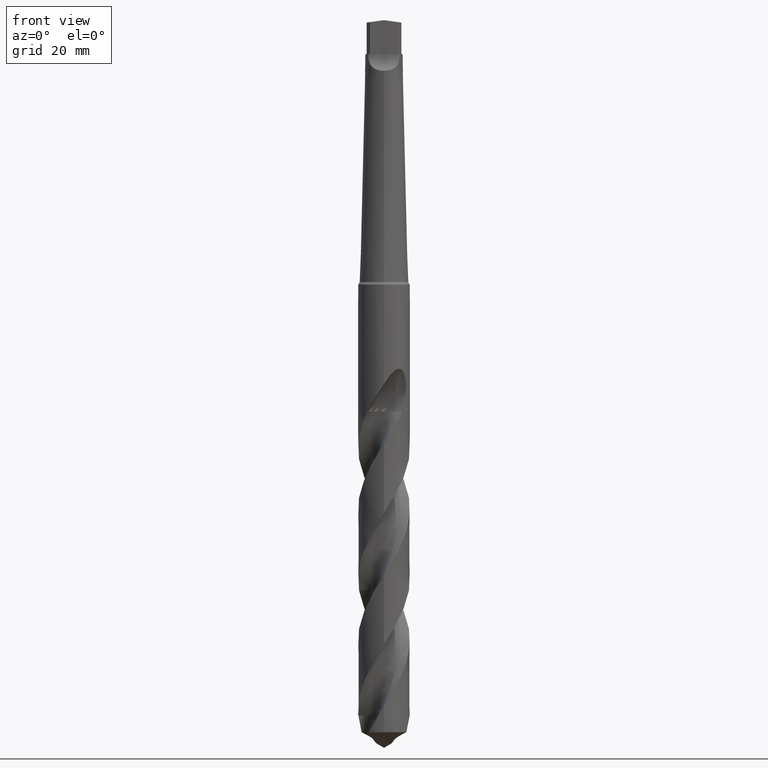
[diagram: clean part render]
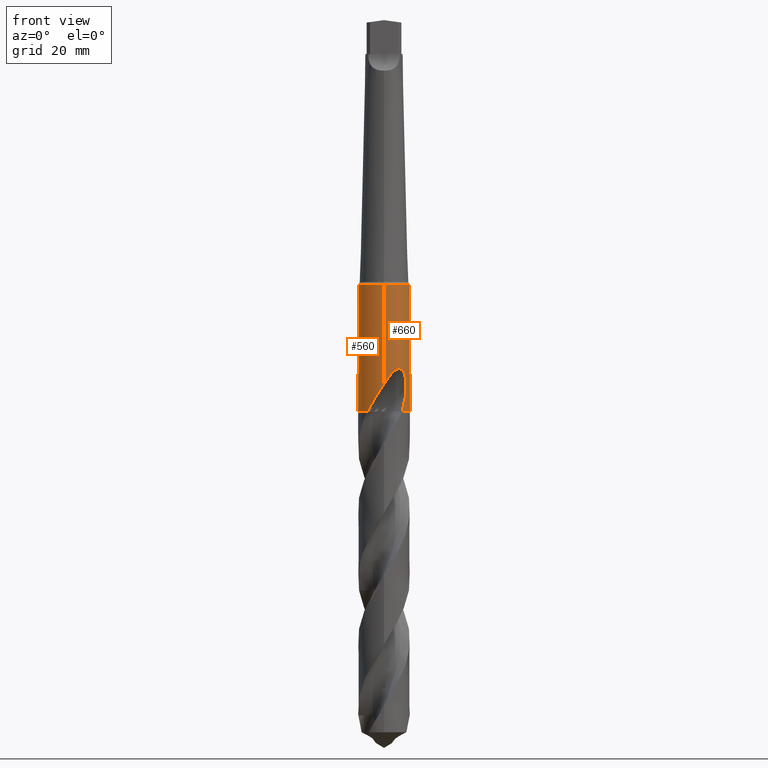
[diagram: same view with one multi-face feature highlighted, each face labeled with its STEP entity id]
A machine part, front view. The highlighted faces form ONE feature: a constant-radius fillet chain: 2 tangent blend faces with common blend radius 6.5 mm. The faces share edges in the B-rep.
Their STEP definitions:
[1] entity #560 (Cylinder):
#322=VERTEX_POINT('',#828);
#334=VERTEX_POINT('',#841);
#338=VERTEX_POINT('',#845);
#374=VERTEX_POINT('',#886);
#402=EDGE_CURVE('',#374,#338,#918,.T.);
#436=EDGE_CURVE('',#512,#692,#956,.T.);
#510=EDGE_CURVE('',#730,#338,#1038,.T.);
#512=VERTEX_POINT('',#1040);
#532=EDGE_CURVE('',#730,#512,#1062,.T.);
#560=ADVANCED_FACE('',(#1091),#1092,.T.);
#578=EDGE_CURVE('',#322,#334,#1112,.T.);
#588=EDGE_CURVE('',#692,#322,#1122,.T.);
#614=EDGE_CURVE('',#334,#374,#1149,.T.);
#692=VERTEX_POINT('',#1234);
#730=VERTEX_POINT('',#1275);
#828=CARTESIAN_POINT('',(0.0,6.5,-4.15817930687617));
#841=CARTESIAN_POINT('',(-1.98725312193417E-012,6.5,-28.9956537273547));
#845=CARTESIAN_POINT('',(-4.51932277904949,4.67180068268804,-35.9));
#886=CARTESIAN_POINT('',(-5.28867406144991,3.77887902316903,-32.3457285140225));
#918=B_SPLINE_CURVE_WITH_KNOTS('',3,(#2948,#2949,#2950,#2951),.UNSPECIFIED.,.F.,.F.,(4,4),(0.0,3.7304180468823),.UNSPECIFIED.);
#956=LINE('',#3150,#3151);
#1038=CIRCLE('',#4203,6.5);
#1040=CARTESIAN_POINT('',(1.98902947877357E-012,-6.5,-28.9956537273547));
#1062=B_SPLINE_CURVE_WITH_KNOTS('',3,(#4264,#4265,#4266,#4267,#4268,#4269,#4270,#4271,#4272,#4273,#4274,#4275,#4276,#4277,#4278,#4279,#4280,#4281,#4282,#4283,#4284,#4285,#4286,#4287,#4288,#4289,#4290,#4291,#4292,#4293),.UNSPECIFIED.,.F.,.F.,(4,2,2,2,2,2,2,2,2,2,2,2,2,2,4),(0.0,3.1809903277017,4.91954110289952,6.49477439006205,8.32513545678558,10.5235474923526,12.4266998005828,13.2899860023741,13.9209877630421,14.5181294194324,15.2756834481871,16.384053317848,17.9597049006676,18.990487032212,20.0737581101875),.UNSPECIFIED.);
#1091=FACE_OUTER_BOUND('',#4381,.T.);
#1092=CYLINDRICAL_SURFACE('',#4382,6.5);
#1112=LINE('',#4484,#4485);
#1122=CIRCLE('',#4501,6.5);
#1149=B_SPLINE_CURVE_WITH_KNOTS('',3,(#4822,#4823,#4824,#4825,#4826,#4827,#4828,#4829,#4830,#4831,#4832,#4833,#4834,#4835,#4836,#4837,#4838,#4839,#4840,#4841,#4842,#4843,#4844,#4845,#4846,#4847,#4848,#4849,#4850,#4851),.UNSPECIFIED.,.F.,.F.,(4,2,2,2,2,2,2,2,2,2,2,2,2,2,4),(0.0,3.18099032770168,4.91954110289942,6.49477439006167,8.32513545678535,10.5235474923523,12.4266998005825,13.2899860023737,13.9209877630416,14.5181294194319,15.2756834481868,16.3840533178464,17.9597049006616,18.9904870322031,20.0737581101756),.UNSPECIFIED.);
#1234=CARTESIAN_POINT('',(7.95994129984545E-016,-6.5,-4.15817930687617));
#1275=CARTESIAN_POINT('',(-4.1395188834721,-5.01142528761808,-35.9));
#2948=CARTESIAN_POINT('',(-5.28867406150253,3.77887902309539,-32.3457285140515));
#2949=CARTESIAN_POINT('',(-5.07941455452145,4.07174506086209,-33.5359655720666));
#2950=CARTESIAN_POINT('',(-4.8272654150656,4.37390865686912,-34.7332515341914));
#2951=CARTESIAN_POINT('',(-4.51932277904949,4.67180068268804,-35.9));
#3150=CARTESIAN_POINT('',(7.95994129984545E-016,-6.5,-20.0290896534381));
#3151=VECTOR('',#7154,1.0);
#4203=AXIS2_PLACEMENT_3D('',#7241,#7242,#7243);
#4264=CARTESIAN_POINT('',(-4.1395188834721,-5.01142528761808,-35.9));
#4265=CARTESIAN_POINT('',(-3.710939633576,-5.36543872614874,-34.997063539087));
#4266=CARTESIAN_POINT('',(-3.21836817802653,-5.68003057835878,-34.1550521977625));
#4267=CARTESIAN_POINT('',(-2.3594727406426,-6.06577304764529,-32.7481972438205));
#4268=CARTESIAN_POINT('',(-2.05022107642257,-6.17679948091023,-32.252903665723));
#4269=CARTESIAN_POINT('',(-1.45146878546427,-6.34274946418171,-31.2940091759847));
#4270=CARTESIAN_POINT('',(-1.16463030583795,-6.40137932375165,-30.834859972935));
#4271=CARTESIAN_POINT('',(-0.543691685916994,-6.48597261458282,-29.8452006731949));
#4272=CARTESIAN_POINT('',(-0.204391774594324,-6.50580165423902,-29.3069260604782));
#4273=CARTESIAN_POINT('',(0.549067501043602,-6.48981063316087,-28.1555124164234));
#4274=CARTESIAN_POINT('',(0.995820184753461,-6.44070008926963,-27.5003467560075));
#4275=CARTESIAN_POINT('',(1.85687690708438,-6.24260250905468,-26.4208203866682));
#4276=CARTESIAN_POINT('',(2.33287475104792,-6.09187146380076,-25.894524331624));
#4277=CARTESIAN_POINT('',(3.05352277581435,-5.7435516742493,-25.4013938945918));
#4278=CARTESIAN_POINT('',(3.29221786463922,-5.61196846664082,-25.2794492883455));
#4279=CARTESIAN_POINT('',(3.71047511146385,-5.34103532698407,-25.1857924847675));
#4280=CARTESIAN_POINT('',(3.88202985549942,-5.21764771202731,-25.184061499913));
#4281=CARTESIAN_POINT('',(4.20156306436699,-4.96349427750833,-25.2661037370722));
#4282=CARTESIAN_POINT('',(4.34131224901716,-4.8407419994764,-25.3430122148751));
#4283=CARTESIAN_POINT('',(4.62570545946774,-4.5717360011083,-25.583637898744));
#4284=CARTESIAN_POINT('',(4.75727913732759,-4.43232908248177,-25.7612951460687));
#4285=CARTESIAN_POINT('',(5.02678484231783,-4.1279241258795,-26.2477724665436));
#4286=CARTESIAN_POINT('',(5.15560071068611,-3.96215569977288,-26.6085961541456));
#4287=CARTESIAN_POINT('',(5.39782003744105,-3.62931626605981,-27.6181189296788));
#4288=CARTESIAN_POINT('',(5.48537824868718,-3.48755829802704,-28.3370810112656));
#4289=CARTESIAN_POINT('',(5.52867094775427,-3.4183096248535,-29.6675409909747));
#4290=CARTESIAN_POINT('',(5.51846664930011,-3.43522913776717,-30.197292970912));
#4291=CARTESIAN_POINT('',(5.44647300344411,-3.5483308057084,-31.2724201728284));
#4292=CARTESIAN_POINT('',(5.38220445249631,-3.64797995229337,-31.8137490490913));
#4293=CARTESIAN_POINT('',(5.28867406144991,-3.77887902316903,-32.3457285140225));
#4381=EDGE_LOOP('',(#7275,#7276,#7277,#7278,#7279,#7280,#7281));
#4382=AXIS2_PLACEMENT_3D('',#7282,#7283,#7284);
#4484=CARTESIAN_POINT('',(-7.95994129984545E-016,6.5,-20.0290896534381));
#4485=VECTOR('',#7322,1.0);
#4501=AXIS2_PLACEMENT_3D('',#7328,#7329,#7330);
#4822=CARTESIAN_POINT('',(4.1395188834721,5.01142528761808,-35.9));
#4823=CARTESIAN_POINT('',(3.710939633576,5.36543872614874,-34.997063539087));
#4824=CARTESIAN_POINT('',(3.21836817802653,5.68003057835878,-34.1550521977624));
#4825=CARTESIAN_POINT('',(2.35947274064261,6.06577304764528,-32.7481972438205));
#4826=CARTESIAN_POINT('',(2.05022107642261,6.17679948091022,-32.252903665723));
#4827=CARTESIAN_POINT('',(1.45146878546427,6.34274946418171,-31.2940091759847));
#4828=CARTESIAN_POINT('',(1.16463030583795,6.40137932375165,-30.834859972935));
#4829=CARTESIAN_POINT('',(0.543691685916909,6.48597261458283,-29.8452006731948));
#4830=CARTESIAN_POINT('',(0.204391774594285,6.50580165423901,-29.3069260604781));
#4831=CARTESIAN_POINT('',(-0.549067501043514,6.48981063316087,-28.1555124164235));
#4832=CARTESIAN_POINT('',(-0.995820184753439,6.44070008926964,-27.5003467560075));
#4833=CARTESIAN_POINT('',(-1.85687690708441,6.24260250905468,-26.4208203866681));
#4834=CARTESIAN_POINT('',(-2.33287475104792,6.09187146380076,-25.894524331624));
#4835=CARTESIAN_POINT('',(-3.05352277581432,5.74355167424931,-25.4013938945918));
#4836=CARTESIAN_POINT('',(-3.29221786463921,5.61196846664083,-25.2794492883455));
#4837=CARTESIAN_POINT('',(-3.71047511146386,5.34103532698407,-25.1857924847674));
#4838=CARTESIAN_POINT('',(-3.88202985549943,5.21764771202731,-25.184061499913));
#4839=CARTESIAN_POINT('',(-4.20156306436701,4.96349427750832,-25.2661037370722));
#4840=CARTESIAN_POINT('',(-4.34131224901719,4.84074199947637,-25.3430122148751));
#4841=CARTESIAN_POINT('',(-4.62570545946774,4.57173600110829,-25.583637898744));
#4842=CARTESIAN_POINT('',(-4.75727913732759,4.43232908248176,-25.7612951460687));
#4843=CARTESIAN_POINT('',(-5.02678484231758,4.12792412587978,-26.2477724665431));
#4844=CARTESIAN_POINT('',(-5.15560071068594,3.9621556997731,-26.6085961541449));
#4845=CARTESIAN_POINT('',(-5.39782003744104,3.62931626605982,-27.6181189296787));
#4846=CARTESIAN_POINT('',(-5.48537824868719,3.48755829802703,-28.3370810112655));
#4847=CARTESIAN_POINT('',(-5.52867094775428,3.41830962485349,-29.6675409909747));
#4848=CARTESIAN_POINT('',(-5.51846664930011,3.43522913776717,-30.197292970912));
#4849=CARTESIAN_POINT('',(-5.44647300344412,3.5483308057084,-31.2724201728284));
#4850=CARTESIAN_POINT('',(-5.3822044524963,3.64797995229338,-31.8137490490913));
#4851=CARTESIAN_POINT('',(-5.28867406144991,3.77887902316903,-32.3457285140225));
#7154=DIRECTION('',(-0.0,-0.0,1.0));
#7241=CARTESIAN_POINT('',(0.0,0.0,-35.9));
#7242=DIRECTION('',(0.0,0.0,-1.0));
#7243=DIRECTION('',(0.0,1.0,0.0));
#7275=ORIENTED_EDGE('',*,*,#578,.T.);
#7276=ORIENTED_EDGE('',*,*,#614,.T.);
#7277=ORIENTED_EDGE('',*,*,#402,.T.);
#7278=ORIENTED_EDGE('',*,*,#510,.F.);
#7279=ORIENTED_EDGE('',*,*,#532,.T.);
#7280=ORIENTED_EDGE('',*,*,#436,.T.);
#7281=ORIENTED_EDGE('',*,*,#588,.T.);
#7282=CARTESIAN_POINT('',(0.0,0.0,-20.0290896534381));
#7283=DIRECTION('',(-0.0,-0.0,1.0));
#7284=DIRECTION('',(0.0,1.0,0.0));
#7322=DIRECTION('',(0.0,0.0,-1.0));
#7328=CARTESIAN_POINT('',(0.0,0.0,-4.15817930687617));
#7329=DIRECTION('',(0.0,0.0,-1.0));
#7330=DIRECTION('',(0.0,1.0,0.0));
[2] entity #660 (Cylinder):
#282=EDGE_CURVE('',#320,#454,#783,.T.);
#320=VERTEX_POINT('',#826);
#322=VERTEX_POINT('',#828);
#334=VERTEX_POINT('',#841);
#436=EDGE_CURVE('',#512,#692,#956,.T.);
#454=VERTEX_POINT('',#975);
#456=EDGE_CURVE('',#320,#334,#977,.T.);
#512=VERTEX_POINT('',#1040);
#524=EDGE_CURVE('',#540,#454,#1053,.T.);
#540=VERTEX_POINT('',#1070);
#578=EDGE_CURVE('',#322,#334,#1112,.T.);
#596=EDGE_CURVE('',#322,#692,#1130,.T.);
#658=EDGE_CURVE('',#512,#540,#1197,.T.);
#660=ADVANCED_FACE('',(#1199),#1200,.T.);
#692=VERTEX_POINT('',#1234);
#783=CIRCLE('',#1472,6.5);
#826=CARTESIAN_POINT('',(4.1395188834721,5.01142528761808,-35.9));
#828=CARTESIAN_POINT('',(0.0,6.5,-4.15817930687617));
#841=CARTESIAN_POINT('',(-1.98725312193417E-012,6.5,-28.9956537273547));
#956=LINE('',#3150,#3151);
#975=CARTESIAN_POINT('',(4.51932277904949,-4.67180068268804,-35.9));
#977=B_SPLINE_CURVE_WITH_KNOTS('',3,(#3809,#3810,#3811,#3812,#3813,#3814,#3815,#3816,#3817,#3818,#3819,#3820,#3821,#3822,#3823,#3824,#3825,#3826,#3827,#3828,#3829,#3830,#3831,#3832,#3833,#3834,#3835,#3836,#3837,#3838),.UNSPECIFIED.,.F.,.F.,(4,2,2,2,2,2,2,2,2,2,2,2,2,2,4),(0.0,3.18099032770168,4.91954110289942,6.49477439006167,8.32513545678535,10.5235474923523,12.4266998005825,13.2899860023737,13.9209877630416,14.5181294194319,15.2756834481868,16.3840533178464,17.9597049006616,18.9904870322031,20.0737581101756),.UNSPECIFIED.);
#1040=CARTESIAN_POINT('',(1.98902947877357E-012,-6.5,-28.9956537273547));
#1053=B_SPLINE_CURVE_WITH_KNOTS('',3,(#4247,#4248,#4249,#4250),.UNSPECIFIED.,.F.,.F.,(4,4),(0.0,3.73041804688224),.UNSPECIFIED.);
#1070=CARTESIAN_POINT('',(5.2886740614499,-3.77887902316904,-32.3457285140225));
#1112=LINE('',#4484,#4485);
#1130=CIRCLE('',#4518,6.5);
#1197=B_SPLINE_CURVE_WITH_KNOTS('',3,(#5408,#5409,#5410,#5411,#5412,#5413,#5414,#5415,#5416,#5417,#5418,#5419,#5420,#5421,#5422,#5423,#5424,#5425,#5426,#5427,#5428,#5429,#5430,#5431,#5432,#5433,#5434,#5435,#5436,#5437),.UNSPECIFIED.,.F.,.F.,(4,2,2,2,2,2,2,2,2,2,2,2,2,2,4),(0.0,3.1809903277017,4.91954110289952,6.49477439006205,8.32513545678558,10.5235474923526,12.4266998005828,13.2899860023741,13.9209877630421,14.5181294194324,15.2756834481871,16.384053317848,17.9597049006676,18.990487032212,20.0737581101875),.UNSPECIFIED.);
#1199=FACE_OUTER_BOUND('',#5439,.T.);
#1200=CYLINDRICAL_SURFACE('',#5440,6.5);
#1234=CARTESIAN_POINT('',(7.95994129984545E-016,-6.5,-4.15817930687617));
#1472=AXIS2_PLACEMENT_3D('',#6921,#6922,#6923);
#3150=CARTESIAN_POINT('',(7.95994129984545E-016,-6.5,-20.0290896534381));
#3151=VECTOR('',#7154,1.0);
#3809=CARTESIAN_POINT('',(4.1395188834721,5.01142528761808,-35.9));
#3810=CARTESIAN_POINT('',(3.710939633576,5.36543872614874,-34.997063539087));
#3811=CARTESIAN_POINT('',(3.21836817802653,5.68003057835878,-34.1550521977624));
#3812=CARTESIAN_POINT('',(2.35947274064261,6.06577304764528,-32.7481972438205));
#3813=CARTESIAN_POINT('',(2.05022107642261,6.17679948091022,-32.252903665723));
#3814=CARTESIAN_POINT('',(1.45146878546427,6.34274946418171,-31.2940091759847));
#3815=CARTESIAN_POINT('',(1.16463030583795,6.40137932375165,-30.834859972935));
#3816=CARTESIAN_POINT('',(0.543691685916909,6.48597261458283,-29.8452006731948));
#3817=CARTESIAN_POINT('',(0.204391774594285,6.50580165423901,-29.3069260604781));
#3818=CARTESIAN_POINT('',(-0.549067501043514,6.48981063316087,-28.1555124164235));
#3819=CARTESIAN_POINT('',(-0.995820184753439,6.44070008926964,-27.5003467560075));
#3820=CARTESIAN_POINT('',(-1.85687690708441,6.24260250905468,-26.4208203866681));
#3821=CARTESIAN_POINT('',(-2.33287475104792,6.09187146380076,-25.894524331624));
#3822=CARTESIAN_POINT('',(-3.05352277581432,5.74355167424931,-25.4013938945918));
#3823=CARTESIAN_POINT('',(-3.29221786463921,5.61196846664083,-25.2794492883455));
#3824=CARTESIAN_POINT('',(-3.71047511146386,5.34103532698407,-25.1857924847674));
#3825=CARTESIAN_POINT('',(-3.88202985549943,5.21764771202731,-25.184061499913));
#3826=CARTESIAN_POINT('',(-4.20156306436701,4.96349427750832,-25.2661037370722));
#3827=CARTESIAN_POINT('',(-4.34131224901719,4.84074199947637,-25.3430122148751));
#3828=CARTESIAN_POINT('',(-4.62570545946774,4.57173600110829,-25.583637898744));
#3829=CARTESIAN_POINT('',(-4.75727913732759,4.43232908248176,-25.7612951460687));
#3830=CARTESIAN_POINT('',(-5.02678484231758,4.12792412587978,-26.2477724665431));
#3831=CARTESIAN_POINT('',(-5.15560071068594,3.9621556997731,-26.6085961541449));
#3832=CARTESIAN_POINT('',(-5.39782003744104,3.62931626605982,-27.6181189296787));
#3833=CARTESIAN_POINT('',(-5.48537824868719,3.48755829802703,-28.3370810112655));
#3834=CARTESIAN_POINT('',(-5.52867094775428,3.41830962485349,-29.6675409909747));
#3835=CARTESIAN_POINT('',(-5.51846664930011,3.43522913776717,-30.197292970912));
#3836=CARTESIAN_POINT('',(-5.44647300344412,3.5483308057084,-31.2724201728284));
#3837=CARTESIAN_POINT('',(-5.3822044524963,3.64797995229338,-31.8137490490913));
#3838=CARTESIAN_POINT('',(-5.28867406144991,3.77887902316903,-32.3457285140225));
#4247=CARTESIAN_POINT('',(5.28867406150252,-3.77887902309539,-32.3457285140515));
#4248=CARTESIAN_POINT('',(5.07941455452145,-4.07174506086208,-33.5359655720666));
#4249=CARTESIAN_POINT('',(4.8272654150656,-4.37390865686912,-34.7332515341914));
#4250=CARTESIAN_POINT('',(4.51932277904948,-4.67180068268804,-35.9));
#4484=CARTESIAN_POINT('',(-7.95994129984545E-016,6.5,-20.0290896534381));
#4485=VECTOR('',#7322,1.0);
#4518=AXIS2_PLACEMENT_3D('',#7332,#7333,#7334);
#5408=CARTESIAN_POINT('',(-4.1395188834721,-5.01142528761808,-35.9));
#5409=CARTESIAN_POINT('',(-3.710939633576,-5.36543872614874,-34.997063539087));
#5410=CARTESIAN_POINT('',(-3.21836817802653,-5.68003057835878,-34.1550521977625));
#5411=CARTESIAN_POINT('',(-2.3594727406426,-6.06577304764529,-32.7481972438205));
#5412=CARTESIAN_POINT('',(-2.05022107642257,-6.17679948091023,-32.252903665723));
#5413=CARTESIAN_POINT('',(-1.45146878546427,-6.34274946418171,-31.2940091759847));
#5414=CARTESIAN_POINT('',(-1.16463030583795,-6.40137932375165,-30.834859972935));
#5415=CARTESIAN_POINT('',(-0.543691685916994,-6.48597261458282,-29.8452006731949));
#5416=CARTESIAN_POINT('',(-0.204391774594324,-6.50580165423902,-29.3069260604782));
#5417=CARTESIAN_POINT('',(0.549067501043602,-6.48981063316087,-28.1555124164234));
#5418=CARTESIAN_POINT('',(0.995820184753461,-6.44070008926963,-27.5003467560075));
#5419=CARTESIAN_POINT('',(1.85687690708438,-6.24260250905468,-26.4208203866682));
#5420=CARTESIAN_POINT('',(2.33287475104792,-6.09187146380076,-25.894524331624));
#5421=CARTESIAN_POINT('',(3.05352277581435,-5.7435516742493,-25.4013938945918));
#5422=CARTESIAN_POINT('',(3.29221786463922,-5.61196846664082,-25.2794492883455));
#5423=CARTESIAN_POINT('',(3.71047511146385,-5.34103532698407,-25.1857924847675));
#5424=CARTESIAN_POINT('',(3.88202985549942,-5.21764771202731,-25.184061499913));
#5425=CARTESIAN_POINT('',(4.20156306436699,-4.96349427750833,-25.2661037370722));
#5426=CARTESIAN_POINT('',(4.34131224901716,-4.8407419994764,-25.3430122148751));
#5427=CARTESIAN_POINT('',(4.62570545946774,-4.5717360011083,-25.583637898744));
#5428=CARTESIAN_POINT('',(4.75727913732759,-4.43232908248177,-25.7612951460687));
#5429=CARTESIAN_POINT('',(5.02678484231783,-4.1279241258795,-26.2477724665436));
#5430=CARTESIAN_POINT('',(5.15560071068611,-3.96215569977288,-26.6085961541456));
#5431=CARTESIAN_POINT('',(5.39782003744105,-3.62931626605981,-27.6181189296788));
#5432=CARTESIAN_POINT('',(5.48537824868718,-3.48755829802704,-28.3370810112656));
#5433=CARTESIAN_POINT('',(5.52867094775427,-3.4183096248535,-29.6675409909747));
#5434=CARTESIAN_POINT('',(5.51846664930011,-3.43522913776717,-30.197292970912));
#5435=CARTESIAN_POINT('',(5.44647300344411,-3.5483308057084,-31.2724201728284));
#5436=CARTESIAN_POINT('',(5.38220445249631,-3.64797995229337,-31.8137490490913));
#5437=CARTESIAN_POINT('',(5.28867406144991,-3.77887902316903,-32.3457285140225));
#5439=EDGE_LOOP('',(#7389,#7390,#7391,#7392,#7393,#7394,#7395));
#5440=AXIS2_PLACEMENT_3D('',#7396,#7397,#7398);
#6921=CARTESIAN_POINT('',(0.0,0.0,-35.9));
#6922=DIRECTION('',(0.0,0.0,-1.0));
#6923=DIRECTION('',(0.0,1.0,0.0));
#7154=DIRECTION('',(-0.0,-0.0,1.0));
#7322=DIRECTION('',(0.0,0.0,-1.0));
#7332=CARTESIAN_POINT('',(0.0,0.0,-4.15817930687617));
#7333=DIRECTION('',(0.0,0.0,-1.0));
#7334=DIRECTION('',(0.0,1.0,0.0));
#7389=ORIENTED_EDGE('',*,*,#578,.F.);
#7390=ORIENTED_EDGE('',*,*,#596,.T.);
#7391=ORIENTED_EDGE('',*,*,#436,.F.);
#7392=ORIENTED_EDGE('',*,*,#658,.T.);
#7393=ORIENTED_EDGE('',*,*,#524,.T.);
#7394=ORIENTED_EDGE('',*,*,#282,.F.);
#7395=ORIENTED_EDGE('',*,*,#456,.T.);
#7396=CARTESIAN_POINT('',(0.0,0.0,-20.0290896534381));
#7397=DIRECTION('',(-0.0,-0.0,1.0));
#7398=DIRECTION('',(0.0,1.0,0.0));